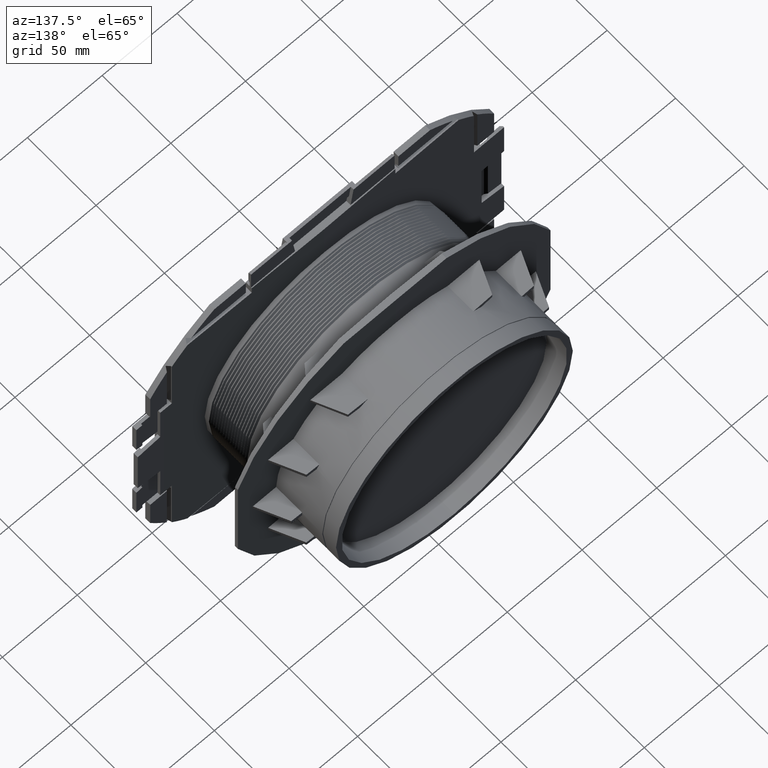
[diagram: clean part render]
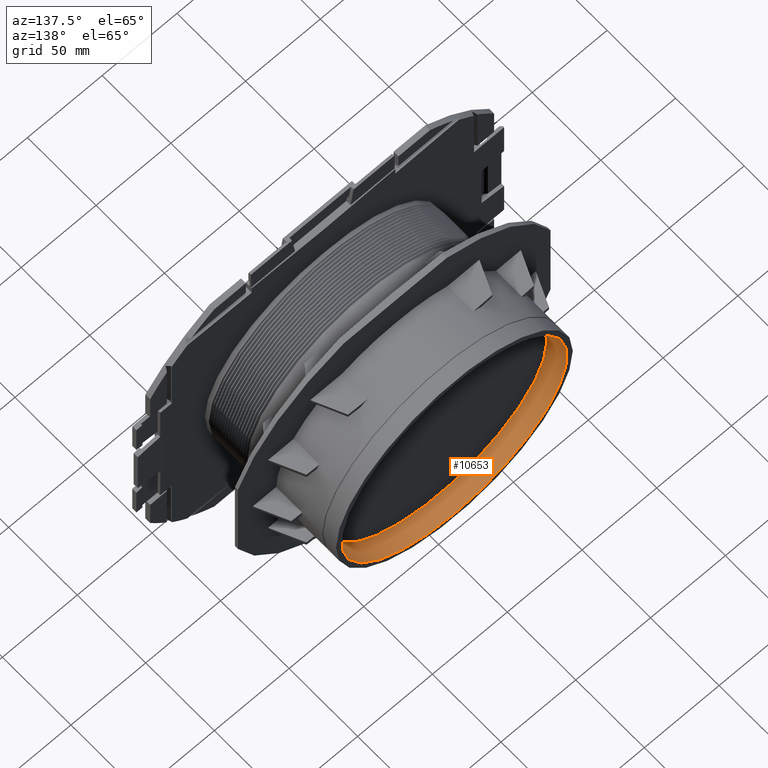
[diagram: same view with one face highlighted and labeled with its STEP entity id]
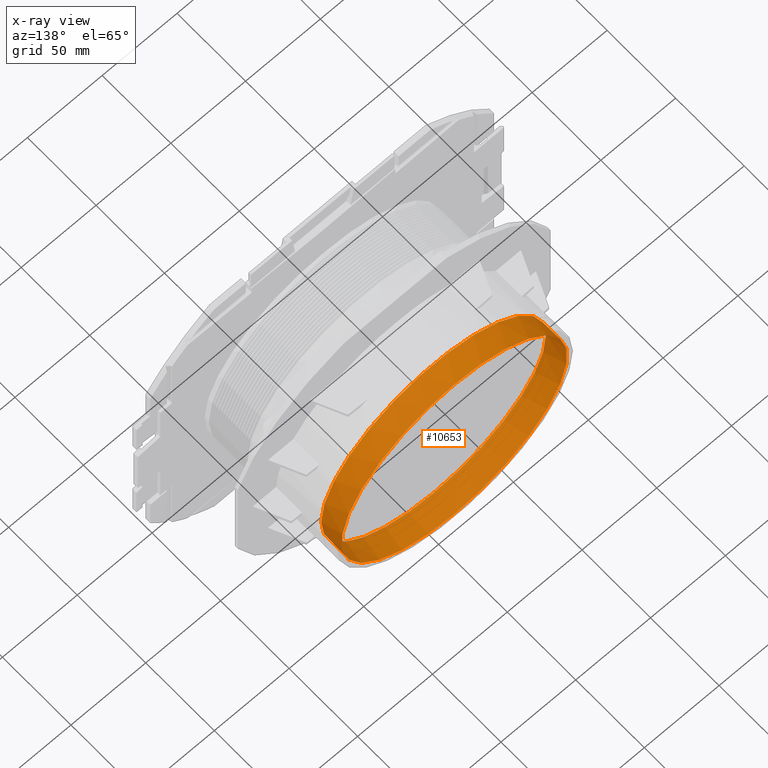
[diagram: x-ray of the same camera — body ghosted, the highlighted face saturated]
A machine part, auxiliary view. The second image highlights one B-rep face of the part: STEP entity #10653.
The next image is the same camera in x-ray: the body ghosted, the highlighted face saturated — about 0% of this face is hidden behind the body in this view.
In plain terms, the highlighted conical surface has half-angle 1 deg.
Its self-contained STEP definition (entity closure, byte-faithful):
#143=CONICAL_SURFACE('',#11438,75.2826584934544,0.0174532925199419);
#639=CIRCLE('',#11125,75.4153169869089);
#685=CIRCLE('',#11439,75.15);
#686=CIRCLE('',#11440,75.15);
#687=CIRCLE('',#11441,75.15);
#1223=FACE_OUTER_BOUND('',#1786,.T.);
#1786=EDGE_LOOP('',(#9186,#9187,#9188,#9189,#9190,#9191));
#2783=LINE('',#20269,#3778);
#3778=VECTOR('',#13919,75.2826584934544);
#4560=VERTEX_POINT('',#18306);
#4749=VERTEX_POINT('',#20268);
#4750=VERTEX_POINT('',#20270);
#4751=VERTEX_POINT('',#20272);
#5736=EDGE_CURVE('',#4560,#4560,#639,.T.);
#6230=EDGE_CURVE('',#4560,#4749,#2783,.T.);
#6231=EDGE_CURVE('',#4749,#4750,#685,.T.);
#6232=EDGE_CURVE('',#4750,#4751,#686,.T.);
#6233=EDGE_CURVE('',#4751,#4749,#687,.T.);
#9186=ORIENTED_EDGE('',*,*,#5736,.T.);
#9187=ORIENTED_EDGE('',*,*,#6230,.T.);
#9188=ORIENTED_EDGE('',*,*,#6231,.T.);
#9189=ORIENTED_EDGE('',*,*,#6232,.T.);
#9190=ORIENTED_EDGE('',*,*,#6233,.T.);
#9191=ORIENTED_EDGE('',*,*,#6230,.F.);
#10653=ADVANCED_FACE('',(#1223),#143,.F.);
#11125=AXIS2_PLACEMENT_3D('',#18307,#12889,#12890);
#11438=AXIS2_PLACEMENT_3D('',#20267,#13917,#13918);
#11439=AXIS2_PLACEMENT_3D('',#20271,#13920,#13921);
#11440=AXIS2_PLACEMENT_3D('',#20273,#13922,#13923);
#11441=AXIS2_PLACEMENT_3D('',#20274,#13924,#13925);
#12889=DIRECTION('center_axis',(0.,1.,0.));
#12890=DIRECTION('ref_axis',(0.,0.,1.));
#13917=DIRECTION('center_axis',(0.,1.,0.));
#13918=DIRECTION('ref_axis',(0.,0.,1.));
#13919=DIRECTION('',(-2.13730336808362E-18,-0.999847695156391,0.0174524064372821));
#13920=DIRECTION('center_axis',(0.,-1.,0.));
#13921=DIRECTION('ref_axis',(1.,0.,0.));
#13922=DIRECTION('center_axis',(0.,-1.,0.));
#13923=DIRECTION('ref_axis',(1.,0.,0.));
#13924=DIRECTION('center_axis',(0.,-1.,0.));
#13925=DIRECTION('ref_axis',(1.,0.,0.));
#18306=CARTESIAN_POINT('',(-9.2357126554701E-15,11.5,-75.4153169869089));
#18307=CARTESIAN_POINT('Origin',(0.,11.5,0.));
#20267=CARTESIAN_POINT('Origin',(0.,3.9,0.));
#20268=CARTESIAN_POINT('',(9.20322069559236E-15,-3.7,-75.15));
#20269=CARTESIAN_POINT('',(9.21946667553123E-15,3.9,-75.2826584934544));
#20270=CARTESIAN_POINT('',(75.15,-3.70000000000001,-9.20322069559236E-15));
#20271=CARTESIAN_POINT('Origin',(0.,-3.7,0.));
#20272=CARTESIAN_POINT('',(-75.15,-3.7,0.));
#20273=CARTESIAN_POINT('Origin',(0.,-3.7,0.));
#20274=CARTESIAN_POINT('Origin',(0.,-3.7,0.));